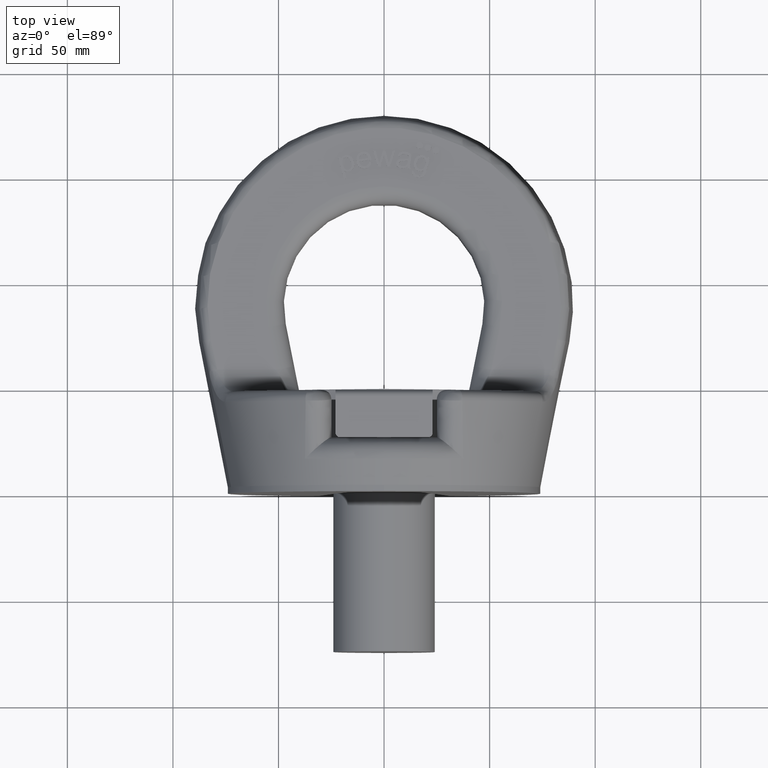
[diagram: clean part render]
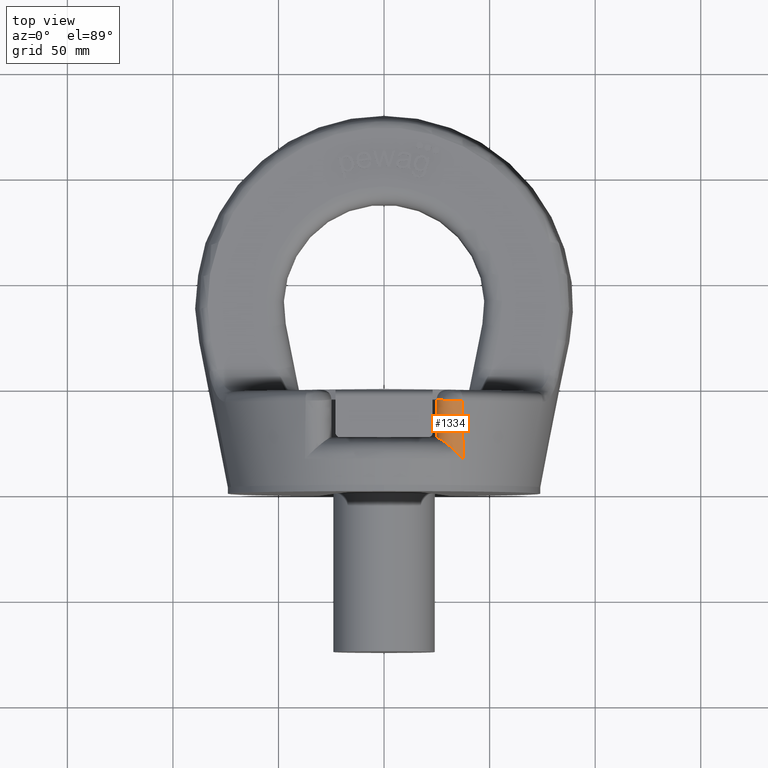
[diagram: same view with one face highlighted and labeled with its STEP entity id]
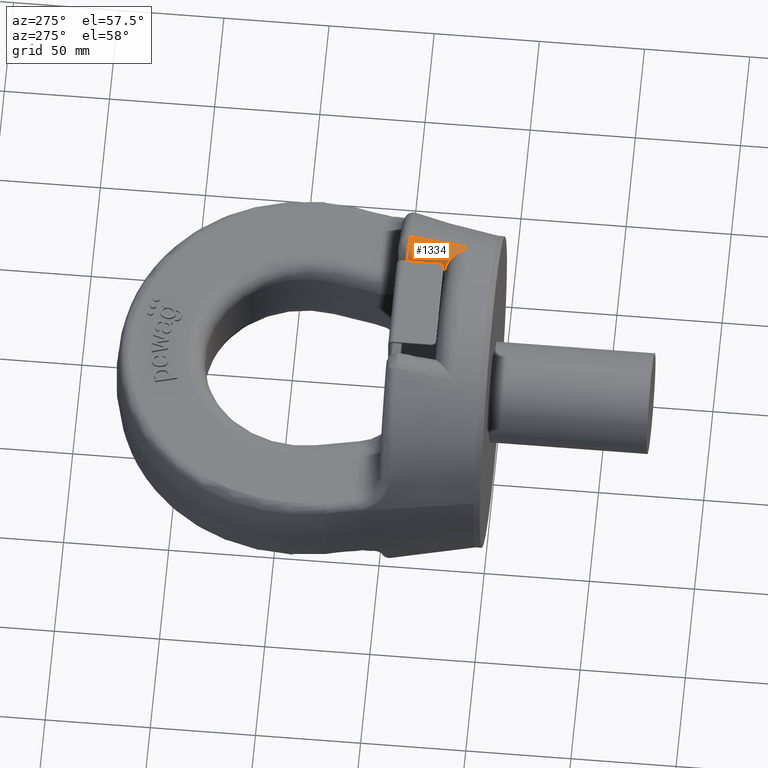
[diagram: same view with one face highlighted and labeled with its STEP entity id]
A machine part, top view. The second image highlights one B-rep face of the part: STEP entity #1334.
A second angle (auxiliary view) of the same face is appended — the face is thin or edge-on in the first view.
In plain terms, the highlighted face is a freeform B-spline surface patch.
Its self-contained STEP definition (entity closure, byte-faithful):
#1024=(
BOUNDED_SURFACE()
B_SPLINE_SURFACE(3,2,((#6949,#6950,#6951),(#6952,#6953,#6954),(#6955,#6956,
#6957),(#6958,#6959,#6960)),.UNSPECIFIED.,.F.,.F.,.F.)
B_SPLINE_SURFACE_WITH_KNOTS((4,4),(3,3),(0.,1.),(0.,1.),.UNSPECIFIED.)
GEOMETRIC_REPRESENTATION_ITEM()
RATIONAL_B_SPLINE_SURFACE(((1.,0.527329025017665,1.),(1.,0.522021725853624,
1.),(1.,0.516241448517571,1.),(1.,0.509827087080664,1.)))
REPRESENTATION_ITEM('')
SURFACE()
);
#1110=FACE_OUTER_BOUND('',#1850,.T.);
#1334=ADVANCED_FACE('',(#1110),#1024,.T.);
#1850=EDGE_LOOP('',(#2902,#2903,#2904,#2905,#2906));
#2902=ORIENTED_EDGE('',*,*,#4386,.F.);
#2903=ORIENTED_EDGE('',*,*,#4428,.T.);
#2904=ORIENTED_EDGE('',*,*,#4355,.F.);
#2905=ORIENTED_EDGE('',*,*,#4351,.F.);
#2906=ORIENTED_EDGE('',*,*,#4429,.F.);
#3962=VERTEX_POINT('',#6653);
#3963=VERTEX_POINT('',#6658);
#3966=VERTEX_POINT('',#6672);
#3996=VERTEX_POINT('',#6828);
#3997=VERTEX_POINT('',#6836);
#4351=EDGE_CURVE('',#3962,#3963,#4881,.T.);
#4355=EDGE_CURVE('',#3963,#3966,#4882,.T.);
#4386=EDGE_CURVE('',#3996,#3997,#4895,.T.);
#4428=EDGE_CURVE('',#3996,#3966,#4899,.T.);
#4429=EDGE_CURVE('',#3997,#3962,#4900,.T.);
#4881=B_SPLINE_CURVE_WITH_KNOTS('',3,(#6654,#6655,#6656,#6657),
 .UNSPECIFIED.,.F.,.F.,(4,4),(0.,1.),.UNSPECIFIED.);
#4882=B_SPLINE_CURVE_WITH_KNOTS('',3,(#6665,#6666,#6667,#6668,#6669,#6670,
#6671),.UNSPECIFIED.,.F.,.F.,(4,3,4),(0.,0.635280833854642,1.),
 .UNSPECIFIED.);
#4895=B_SPLINE_CURVE_WITH_KNOTS('',3,(#6829,#6830,#6831,#6832,#6833,#6834,
#6835),.UNSPECIFIED.,.F.,.F.,(4,3,4),(0.,0.272292325892562,1.),
 .UNSPECIFIED.);
#4899=B_SPLINE_CURVE_WITH_KNOTS('',3,(#6935,#6936,#6937,#6938,#6939,#6940),
 .UNSPECIFIED.,.F.,.F.,(4,2,4),(0.,0.5,1.),.UNSPECIFIED.);
#4900=B_SPLINE_CURVE_WITH_KNOTS('',3,(#6941,#6942,#6943,#6944,#6945,#6946,
#6947,#6948),.UNSPECIFIED.,.F.,.F.,(4,2,2,4),(0.,0.5,0.75,1.),
 .UNSPECIFIED.);
#6653=CARTESIAN_POINT('',(25.2255851448153,25.5000000000001,63.4157004694214));
#6654=CARTESIAN_POINT('',(25.2255851448153,25.5000000000001,63.4157004694214));
#6655=CARTESIAN_POINT('',(25.0760616120675,25.5000000000001,62.7674946038835));
#6656=CARTESIAN_POINT('',(25.,25.5000000000001,62.0980353807569));
#6657=CARTESIAN_POINT('',(25.,25.5000000000001,61.4328075017837));
#6658=CARTESIAN_POINT('',(25.,25.5000000000001,61.4328075017837));
#6665=CARTESIAN_POINT('',(25.,25.5000000000001,61.4328075017837));
#6666=CARTESIAN_POINT('',(25.,29.3738428698279,62.3129190509239));
#6667=CARTESIAN_POINT('',(25.,33.2486180436095,63.1889347995472));
#6668=CARTESIAN_POINT('',(25.,37.1242055572475,64.0613316949906));
#6669=CARTESIAN_POINT('',(25.,39.3492078113182,64.5621809344866));
#6670=CARTESIAN_POINT('',(25.,41.5744791615485,65.0618360268838));
#6671=CARTESIAN_POINT('',(25.,43.8,65.5603758838078));
#6672=CARTESIAN_POINT('',(25.,43.8,65.5603758838078));
#6828=CARTESIAN_POINT('',(37.131014415804,42.9778944153068,73.0886031205241));
#6829=CARTESIAN_POINT('',(37.131014415804,42.9778944153068,73.0886031205241));
#6830=CARTESIAN_POINT('',(37.156258862024,40.4781663420141,72.5161358794598));
#6831=CARTESIAN_POINT('',(37.1820113280752,37.9788532934449,71.9418750789133));
#6832=CARTESIAN_POINT('',(37.2083033527761,35.4799943878611,71.3656725416173));
#6833=CARTESIAN_POINT('',(37.2785692704164,28.8017481876345,69.8257607055952));
#6834=CARTESIAN_POINT('',(37.3526783553791,22.1266991999599,68.2720509080139));
#6835=CARTESIAN_POINT('',(37.4313287231457,15.4557888306137,66.7010617175532));
#6836=CARTESIAN_POINT('',(37.4313287231457,15.4557888306137,66.7010617175532));
#6935=CARTESIAN_POINT('',(37.131014415804,42.9778944153069,73.0886031205241));
#6936=CARTESIAN_POINT('',(34.5553399360753,42.8384861902377,74.3659054845125));
#6937=CARTESIAN_POINT('',(31.3827392596604,42.8560112695677,74.2052582230254));
#6938=CARTESIAN_POINT('',(26.5244963371742,43.1869546267043,71.1732274343985));
#6939=CARTESIAN_POINT('',(24.9999999999996,43.4874068193175,68.421280733975));
#6940=CARTESIAN_POINT('',(25.,43.8000000000001,65.5603758838078));
#6941=CARTESIAN_POINT('',(37.4313287231457,15.4557888306138,66.7010617175531));
#6942=CARTESIAN_POINT('',(35.5456366493062,17.420953752428,68.2090662808301));
#6943=CARTESIAN_POINT('',(33.259201430747,19.5457229970233,69.0653710285389));
#6944=CARTESIAN_POINT('',(29.6815419997057,22.5675181637544,68.5962993708092));
#6945=CARTESIAN_POINT('',(28.4803541395493,23.5312860250488,68.1291277510809));
#6946=CARTESIAN_POINT('',(26.4039340749949,25.0235848289676,66.3257358981011));
#6947=CARTESIAN_POINT('',(25.5808194437845,25.5000000000001,64.95569188081));
#6948=CARTESIAN_POINT('',(25.2255851448153,25.5000000000001,63.4157004694214));
#6949=CARTESIAN_POINT('',(25.,44.8886190322565,65.8041447789041));
#6950=CARTESIAN_POINT('',(25.,41.932211868449,79.0118443610342));
#6951=CARTESIAN_POINT('',(37.1283248694818,43.2444078628701,73.1496306919032));
#6952=CARTESIAN_POINT('',(25.,35.5655849076255,63.7172798636459));
#6953=CARTESIAN_POINT('',(25.000000000067,32.454264610732,77.0855863970233));
#6954=CARTESIAN_POINT('',(37.2223413897205,33.9213699290764,71.0150452581259));
#6955=CARTESIAN_POINT('',(25.,26.2467297357173,61.6112481214319));
#6956=CARTESIAN_POINT('',(25.,23.0467354318526,75.1752588126356));
#6957=CARTESIAN_POINT('',(37.3233828842645,24.6025129294902,68.855522004517));
#6958=CARTESIAN_POINT('',(25.,16.9343633957113,59.4794884455621));
#6959=CARTESIAN_POINT('',(25.,13.7714901553992,73.296165169258));
#6960=CARTESIAN_POINT('',(37.4332825334846,15.290152226325,66.662050776343));